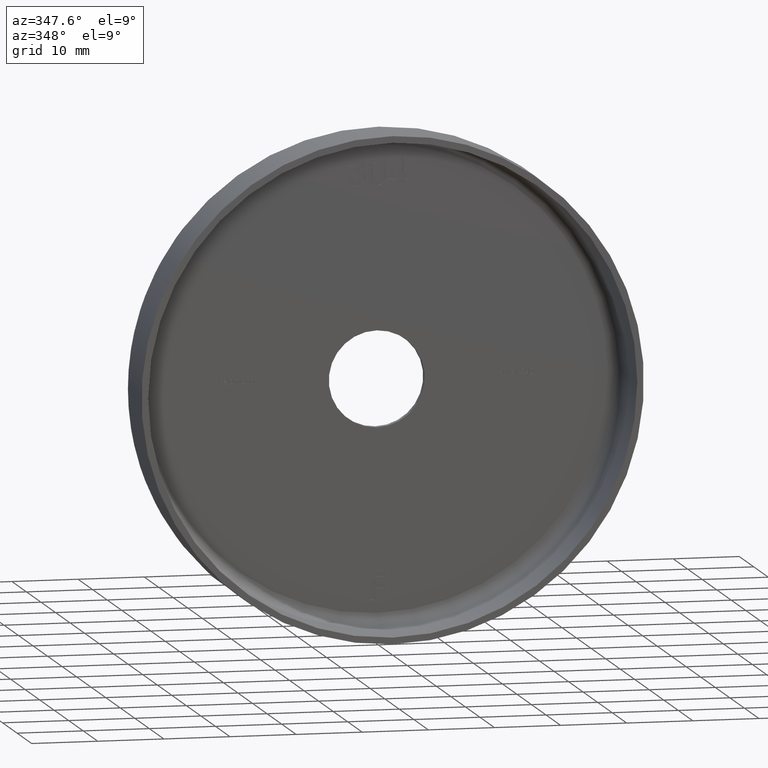
[diagram: clean part render]
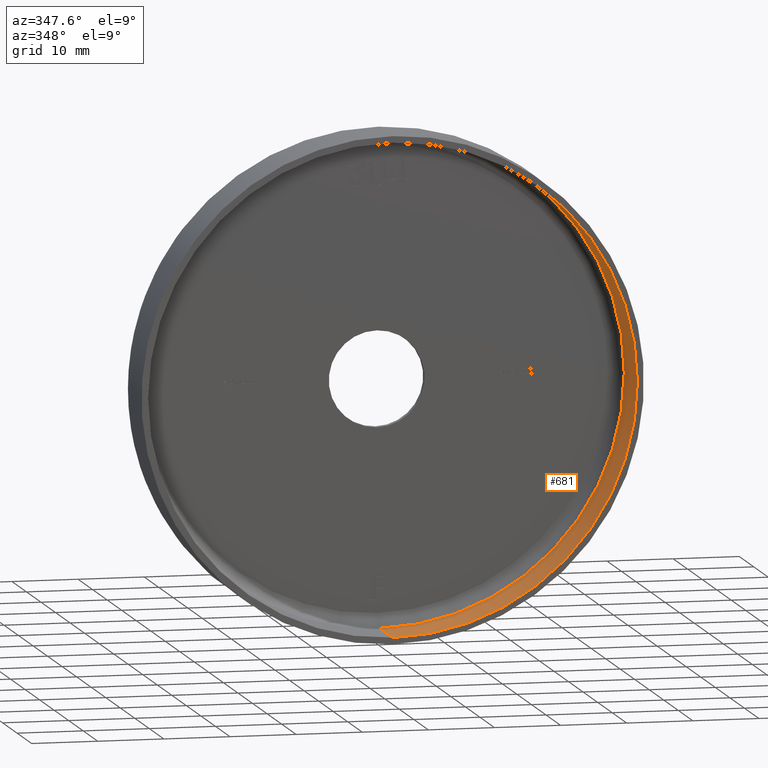
[diagram: same view with one face highlighted and labeled with its STEP entity id]
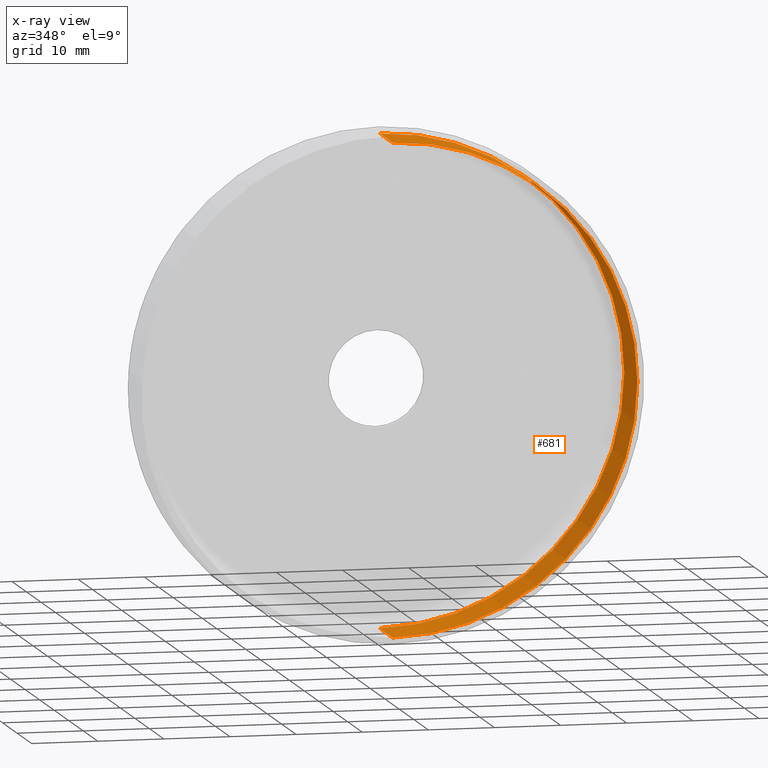
[diagram: x-ray of the same camera — body ghosted, the highlighted face saturated]
A machine part, auxiliary view. The second image highlights one B-rep face of the part: STEP entity #681.
The next image is the same camera in x-ray: the body ghosted, the highlighted face saturated — about 0% of this face is hidden behind the body in this view.
In plain terms, the highlighted cylindrical surface (partial cylindrical patch) has radius 37 mm, axis along (-0, -1, -0).
Its self-contained STEP definition (entity closure, byte-faithful):
#282 = ORIENTED_EDGE ( 'NONE', *, *, #10434, .T. ) ;
#680 = CARTESIAN_POINT ( 'NONE',  ( 4.531193156845207581E-15, 9.000000000000001776, 37.00000000000000711 ) ) ;
#681 = ADVANCED_FACE ( 'NONE', ( #1520 ), #3535, .F. ) ;
#720 = CARTESIAN_POINT ( 'NONE',  ( 0.000000000000000000, 0.000000000000000000, 0.000000000000000000 ) ) ;
#740 = AXIS2_PLACEMENT_3D ( 'NONE', #8298, #3611, #5725 ) ;
#1520 = FACE_OUTER_BOUND ( 'NONE', #4958, .T. ) ;
#1521 = LINE ( 'NONE', #6167, #9081 ) ;
#1545 = CARTESIAN_POINT ( 'NONE',  ( 0.000000000000000000, 9.000000000000001776, -37.00000000000000711 ) ) ;
#1896 = VERTEX_POINT ( 'NONE', #8551 ) ;
#3535 = CYLINDRICAL_SURFACE ( 'NONE', #3539, 37.00000000000000711 ) ;
#3539 = AXIS2_PLACEMENT_3D ( 'NONE', #720, #11354, #9108 ) ;
#3611 = DIRECTION ( 'NONE',  ( -0.000000000000000000, -1.000000000000000000, -0.000000000000000000 ) ) ;
#3751 = ORIENTED_EDGE ( 'NONE', *, *, #6971, .T. ) ;
#3766 = ORIENTED_EDGE ( 'NONE', *, *, #7046, .F. ) ;
#3821 = VECTOR ( 'NONE', #12912, 1000.000000000000000 ) ;
#4515 = DIRECTION ( 'NONE',  ( 0.000000000000000000, 0.000000000000000000, -1.000000000000000000 ) ) ;
#4908 = VERTEX_POINT ( 'NONE', #680 ) ;
#4958 = EDGE_LOOP ( 'NONE', ( #12492, #3766, #3751, #282 ) ) ;
#5725 = DIRECTION ( 'NONE',  ( 0.000000000000000000, 0.000000000000000000, -1.000000000000000000 ) ) ;
#5749 = CARTESIAN_POINT ( 'NONE',  ( 0.000000000000000000, 9.000000000000001776, 0.000000000000000000 ) ) ;
#5990 = CARTESIAN_POINT ( 'NONE',  ( 0.000000000000000000, -1.224646799147353207E-16, -37.00000000000000711 ) ) ;
#6167 = CARTESIAN_POINT ( 'NONE',  ( 4.531193156845207581E-15, 0.000000000000000000, 37.00000000000000711 ) ) ;
#6971 = EDGE_CURVE ( 'NONE', #13466, #7144, #9721, .T. ) ;
#7046 = EDGE_CURVE ( 'NONE', #13466, #4908, #15057, .T. ) ;
#7144 = VERTEX_POINT ( 'NONE', #5990 ) ;
#8298 = CARTESIAN_POINT ( 'NONE',  ( 0.000000000000000000, -1.224646799147353207E-16, 0.000000000000000000 ) ) ;
#8551 = CARTESIAN_POINT ( 'NONE',  ( 4.531193156845207581E-15, -1.224646799147353207E-16, 37.00000000000000711 ) ) ;
#9081 = VECTOR ( 'NONE', #14385, 1000.000000000000000 ) ;
#9108 = DIRECTION ( 'NONE',  ( 0.000000000000000000, 0.000000000000000000, -1.000000000000000000 ) ) ;
#9174 = CARTESIAN_POINT ( 'NONE',  ( 0.000000000000000000, 0.000000000000000000, -37.00000000000000711 ) ) ;
#9721 = LINE ( 'NONE', #9174, #3821 ) ;
#10434 = EDGE_CURVE ( 'NONE', #7144, #1896, #14428, .T. ) ;
#11354 = DIRECTION ( 'NONE',  ( -0.000000000000000000, -1.000000000000000000, -0.000000000000000000 ) ) ;
#11722 = DIRECTION ( 'NONE',  ( -0.000000000000000000, -1.000000000000000000, -0.000000000000000000 ) ) ;
#12492 = ORIENTED_EDGE ( 'NONE', *, *, #13961, .F. ) ;
#12912 = DIRECTION ( 'NONE',  ( -0.000000000000000000, -1.000000000000000000, -0.000000000000000000 ) ) ;
#13466 = VERTEX_POINT ( 'NONE', #1545 ) ;
#13961 = EDGE_CURVE ( 'NONE', #4908, #1896, #1521, .T. ) ;
#13992 = AXIS2_PLACEMENT_3D ( 'NONE', #5749, #11722, #4515 ) ;
#14385 = DIRECTION ( 'NONE',  ( -0.000000000000000000, -1.000000000000000000, -0.000000000000000000 ) ) ;
#14428 = CIRCLE ( 'NONE', #740, 37.00000000000000711 ) ;
#15057 = CIRCLE ( 'NONE', #13992, 37.00000000000000711 ) ;